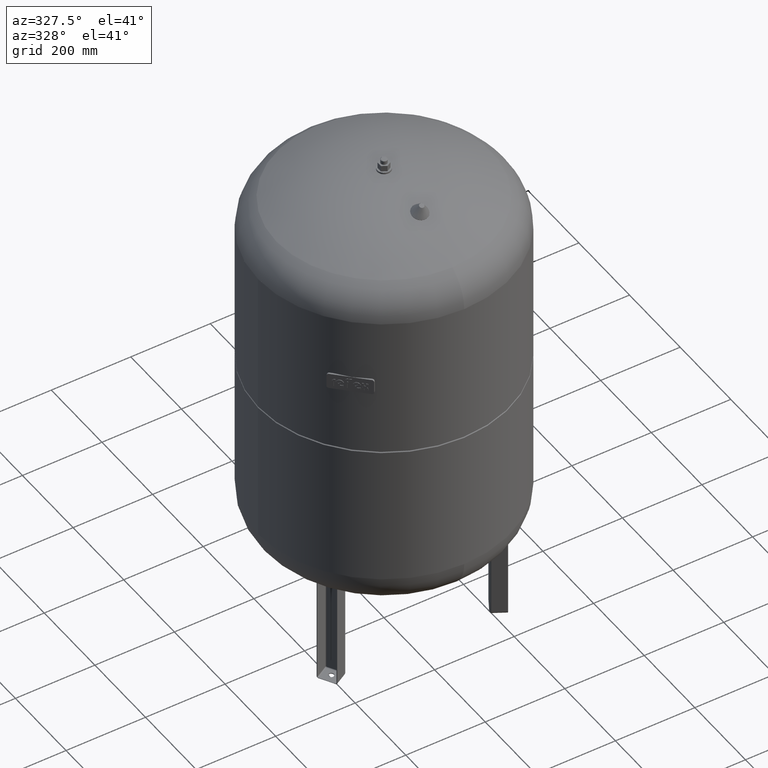
[diagram: clean part render]
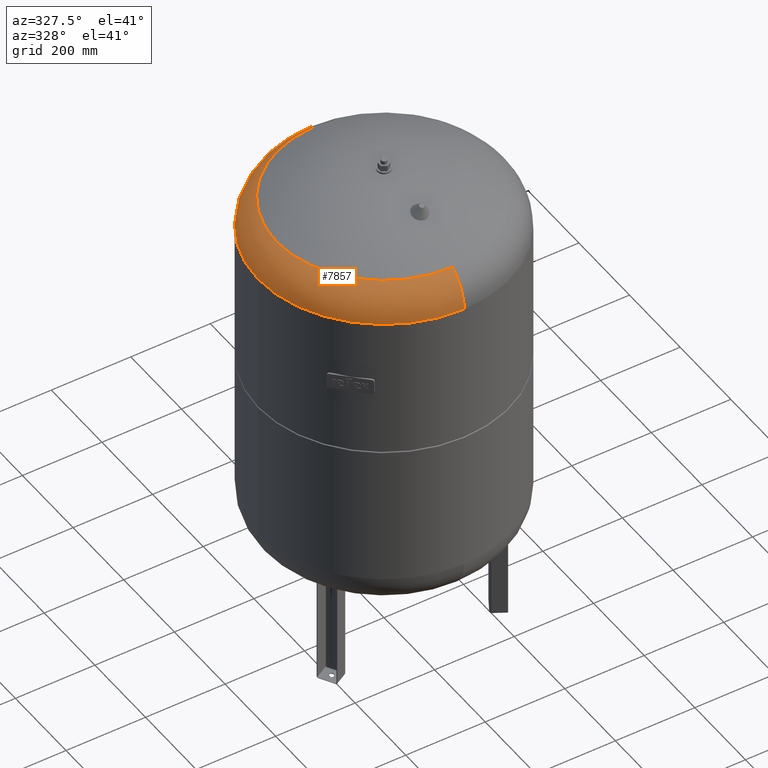
[diagram: same view with one face highlighted and labeled with its STEP entity id]
A machine part, auxiliary view. The second image highlights one B-rep face of the part: STEP entity #7857.
In plain terms, the highlighted toroidal blend (fillet) surface has major radius 218 mm and minor (blend) radius 99 mm.
Its self-contained STEP definition (entity closure, byte-faithful):
#7762=CARTESIAN_POINT('',(-317.000000000000060,4.952455E-014,1076.240550627371500));
#7763=VERTEX_POINT('',#7762);
#7787=CARTESIAN_POINT('',(-3.882002E-014,-317.0,1076.240550627371200));
#7788=VERTEX_POINT('',#7787);
#7796=CARTESIAN_POINT('',(-1.556097E-014,4.952455E-014,1076.240550627371200));
#7797=DIRECTION('',(0.0,0.0,-1.0));
#7798=DIRECTION('',(-1.0,0.0,0.0));
#7799=AXIS2_PLACEMENT_3D('',#7796,#7797,#7798);
#7800=CIRCLE('',#7799,317.000000000000060);
#7801=EDGE_CURVE('',#7788,#7763,#7800,.T.);
#7806=CARTESIAN_POINT('',(0.0,4.952455E-014,1076.240550627371200));
#7807=DIRECTION('',(-9.619823E-017,3.061617E-016,-1.0));
#7808=DIRECTION('',(0.0,1.0,0.0));
#7809=AXIS2_PLACEMENT_3D('',#7806,#7807,#7808);
#7810=TOROIDAL_SURFACE('',#7809,218.0,99.0);
#7811=CARTESIAN_POINT('',(6.180908E-030,317.000000000000110,1076.240550627371200));
#7812=VERTEX_POINT('',#7811);
#7813=CARTESIAN_POINT('',(8.065826E-015,270.639024390243830,1160.086439681297600));
#7814=VERTEX_POINT('',#7813);
#7815=CARTESIAN_POINT('',(0.0,218.000000000000060,1076.240550627371200));
#7816=DIRECTION('',(1.0,0.0,0.0));
#7817=DIRECTION('',(0.0,1.0,0.0));
#7818=AXIS2_PLACEMENT_3D('',#7815,#7816,#7817);
#7819=CIRCLE('',#7818,99.0);
#7820=EDGE_CURVE('',#7812,#7814,#7819,.T.);
#7821=ORIENTED_EDGE('',*,*,#7820,.F.);
#7822=CARTESIAN_POINT('',(-1.556097E-014,4.952455E-014,1076.240550627371200));
#7823=DIRECTION('',(0.0,0.0,-1.0));
#7824=DIRECTION('',(-1.0,0.0,0.0));
#7825=AXIS2_PLACEMENT_3D('',#7822,#7823,#7824);
#7826=CIRCLE('',#7825,317.000000000000060);
#7827=EDGE_CURVE('',#7763,#7812,#7826,.T.);
#7828=ORIENTED_EDGE('',*,*,#7827,.F.);
#7829=ORIENTED_EDGE('',*,*,#7801,.F.);
#7830=CARTESIAN_POINT('',(-2.507680E-014,-270.639024390243830,1160.086439681297600));
#7831=VERTEX_POINT('',#7830);
#7832=CARTESIAN_POINT('',(-2.669642E-014,-217.999999999999940,1076.240550627371200));
#7833=DIRECTION('',(-1.0,0.0,0.0));
#7834=DIRECTION('',(0.0,-1.0,0.0));
#7835=AXIS2_PLACEMENT_3D('',#7832,#7833,#7834);
#7836=CIRCLE('',#7835,99.0);
#7837=EDGE_CURVE('',#7788,#7831,#7836,.T.);
#7838=ORIENTED_EDGE('',*,*,#7837,.T.);
#7839=CARTESIAN_POINT('',(-270.639024390243830,2.385415E-014,1160.086439681297600));
#7840=VERTEX_POINT('',#7839);
#7841=CARTESIAN_POINT('',(-7.495146E-015,2.385415E-014,1160.086439681297600));
#7842=DIRECTION('',(0.0,0.0,-1.0));
#7843=DIRECTION('',(-1.0,0.0,0.0));
#7844=AXIS2_PLACEMENT_3D('',#7841,#7842,#7843);
#7845=CIRCLE('',#7844,270.639024390243830);
#7846=EDGE_CURVE('',#7831,#7840,#7845,.T.);
#7847=ORIENTED_EDGE('',*,*,#7846,.T.);
#7848=CARTESIAN_POINT('',(-7.495146E-015,2.385415E-014,1160.086439681297600));
#7849=DIRECTION('',(0.0,0.0,-1.0));
#7850=DIRECTION('',(-1.0,0.0,0.0));
#7851=AXIS2_PLACEMENT_3D('',#7848,#7849,#7850);
#7852=CIRCLE('',#7851,270.639024390243830);
#7853=EDGE_CURVE('',#7840,#7814,#7852,.T.);
#7854=ORIENTED_EDGE('',*,*,#7853,.T.);
#7855=EDGE_LOOP('',(#7821,#7828,#7829,#7838,#7847,#7854));
#7856=FACE_OUTER_BOUND('',#7855,.T.);
#7857=ADVANCED_FACE('',(#7856),#7810,.T.);